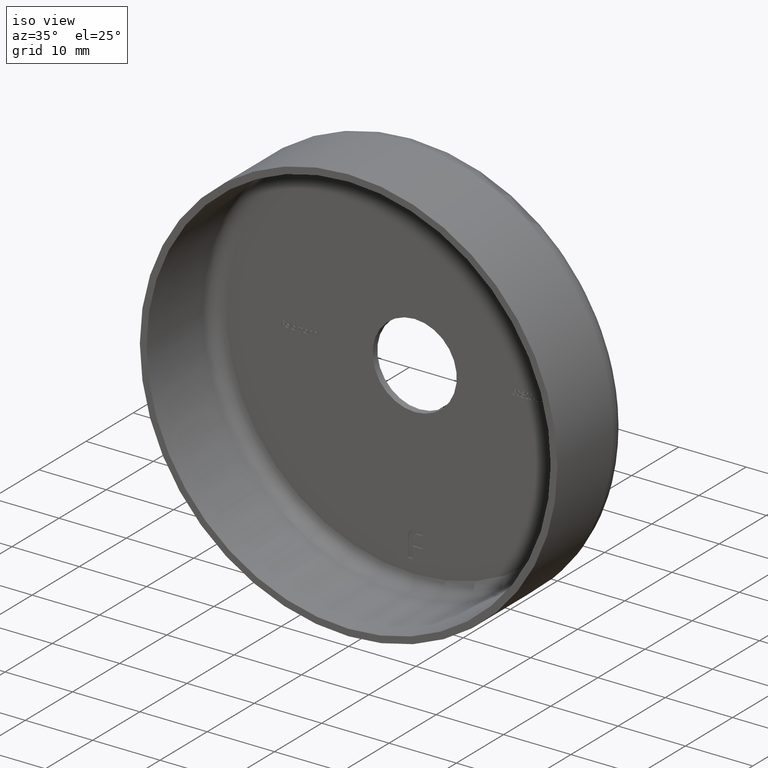
[diagram: clean part render]
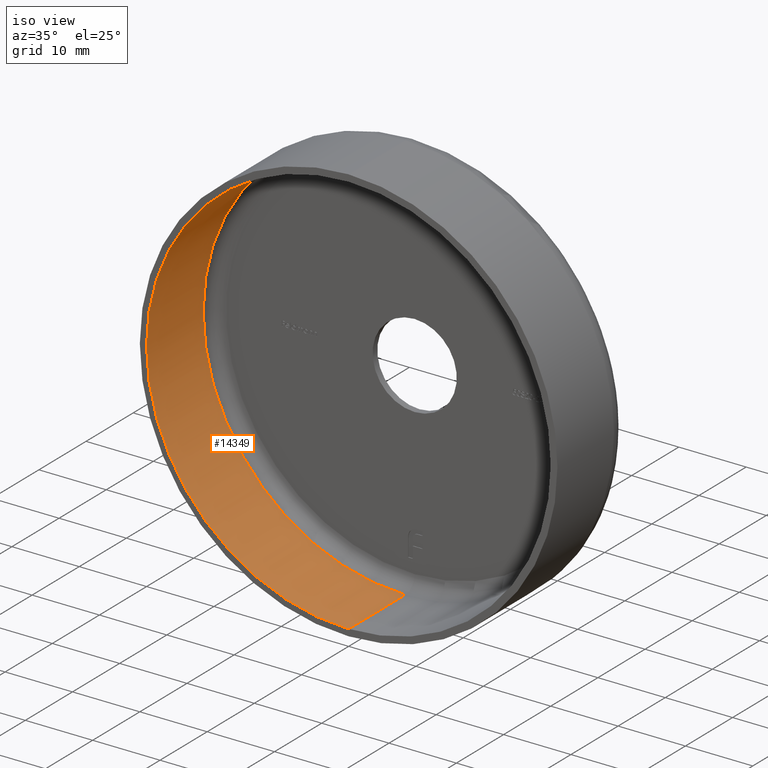
[diagram: same view with one face highlighted and labeled with its STEP entity id]
A machine part, iso view. The second image highlights one B-rep face of the part: STEP entity #14349.
In plain terms, the highlighted cylindrical surface (partial cylindrical patch) has radius 30 mm, axis along (-0, -1, -0).
Its self-contained STEP definition (entity closure, byte-faithful):
#552 = DIRECTION ( 'NONE',  ( -0.000000000000000000, -1.000000000000000000, -0.000000000000000000 ) ) ;
#610 = CARTESIAN_POINT ( 'NONE',  ( 0.000000000000000000, 0.000000000000000000, 0.000000000000000000 ) ) ;
#912 = ORIENTED_EDGE ( 'NONE', *, *, #13014, .F. ) ;
#1062 = EDGE_LOOP ( 'NONE', ( #4254, #10226, #8518, #912 ) ) ;
#1106 = DIRECTION ( 'NONE',  ( -0.000000000000000000, -1.000000000000000000, -0.000000000000000000 ) ) ;
#1693 = DIRECTION ( 'NONE',  ( -0.000000000000000000, -1.000000000000000000, -0.000000000000000000 ) ) ;
#1972 = CIRCLE ( 'NONE', #17087, 30.00000000000000000 ) ;
#2013 = AXIS2_PLACEMENT_3D ( 'NONE', #16828, #1106, #7770 ) ;
#2207 = FACE_OUTER_BOUND ( 'NONE', #1062, .T. ) ;
#2286 = CARTESIAN_POINT ( 'NONE',  ( 0.000000000000000000, 12.00000000000000000, -30.00000000000000000 ) ) ;
#2659 = AXIS2_PLACEMENT_3D ( 'NONE', #610, #552, #8452 ) ;
#3232 = EDGE_CURVE ( 'NONE', #5320, #16326, #1972, .T. ) ;
#3998 = LINE ( 'NONE', #7506, #7084 ) ;
#4254 = ORIENTED_EDGE ( 'NONE', *, *, #12821, .F. ) ;
#5291 = CYLINDRICAL_SURFACE ( 'NONE', #2659, 30.00000000000000000 ) ;
#5320 = VERTEX_POINT ( 'NONE', #15284 ) ;
#5513 = VECTOR ( 'NONE', #16053, 1000.000000000000000 ) ;
#6151 = EDGE_CURVE ( 'NONE', #6825, #5320, #3998, .T. ) ;
#6825 = VERTEX_POINT ( 'NONE', #9738 ) ;
#7084 = VECTOR ( 'NONE', #14191, 1000.000000000000000 ) ;
#7506 = CARTESIAN_POINT ( 'NONE',  ( 3.673940397442059178E-15, 0.000000000000000000, 30.00000000000000000 ) ) ;
#7770 = DIRECTION ( 'NONE',  ( 0.000000000000000000, 0.000000000000000000, -1.000000000000000000 ) ) ;
#8452 = DIRECTION ( 'NONE',  ( 0.000000000000000000, 0.000000000000000000, -1.000000000000000000 ) ) ;
#8518 = ORIENTED_EDGE ( 'NONE', *, *, #3232, .T. ) ;
#8889 = CARTESIAN_POINT ( 'NONE',  ( 0.000000000000000000, -1.224646799147353207E-16, -30.00000000000000000 ) ) ;
#9738 = CARTESIAN_POINT ( 'NONE',  ( 3.673940397442059178E-15, 12.00000000000000000, 30.00000000000000000 ) ) ;
#10226 = ORIENTED_EDGE ( 'NONE', *, *, #6151, .T. ) ;
#10883 = VERTEX_POINT ( 'NONE', #2286 ) ;
#11106 = CARTESIAN_POINT ( 'NONE',  ( 0.000000000000000000, -1.224646799147353207E-16, 0.000000000000000000 ) ) ;
#12821 = EDGE_CURVE ( 'NONE', #6825, #10883, #13037, .T. ) ;
#13014 = EDGE_CURVE ( 'NONE', #10883, #16326, #14282, .T. ) ;
#13037 = CIRCLE ( 'NONE', #2013, 30.00000000000000000 ) ;
#14191 = DIRECTION ( 'NONE',  ( -0.000000000000000000, -1.000000000000000000, -0.000000000000000000 ) ) ;
#14282 = LINE ( 'NONE', #17117, #5513 ) ;
#14349 = ADVANCED_FACE ( 'NONE', ( #2207 ), #5291, .F. ) ;
#15284 = CARTESIAN_POINT ( 'NONE',  ( 3.673940397442059178E-15, -1.224646799147353207E-16, 30.00000000000000000 ) ) ;
#16053 = DIRECTION ( 'NONE',  ( -0.000000000000000000, -1.000000000000000000, -0.000000000000000000 ) ) ;
#16326 = VERTEX_POINT ( 'NONE', #8889 ) ;
#16428 = DIRECTION ( 'NONE',  ( 0.000000000000000000, 0.000000000000000000, -1.000000000000000000 ) ) ;
#16828 = CARTESIAN_POINT ( 'NONE',  ( 0.000000000000000000, 12.00000000000000000, 0.000000000000000000 ) ) ;
#17087 = AXIS2_PLACEMENT_3D ( 'NONE', #11106, #1693, #16428 ) ;
#17117 = CARTESIAN_POINT ( 'NONE',  ( 0.000000000000000000, 0.000000000000000000, -30.00000000000000000 ) ) ;